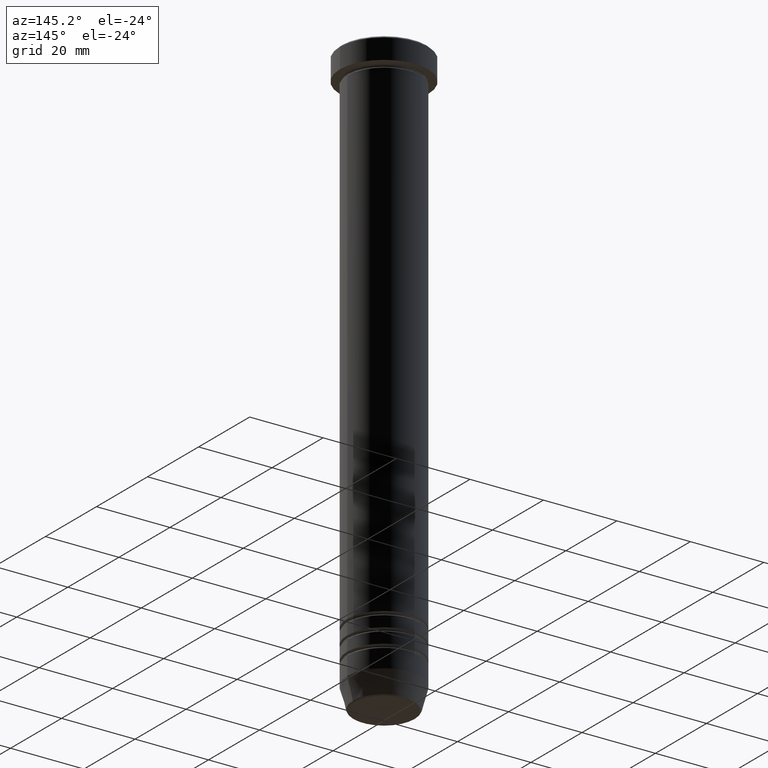
[diagram: clean part render]
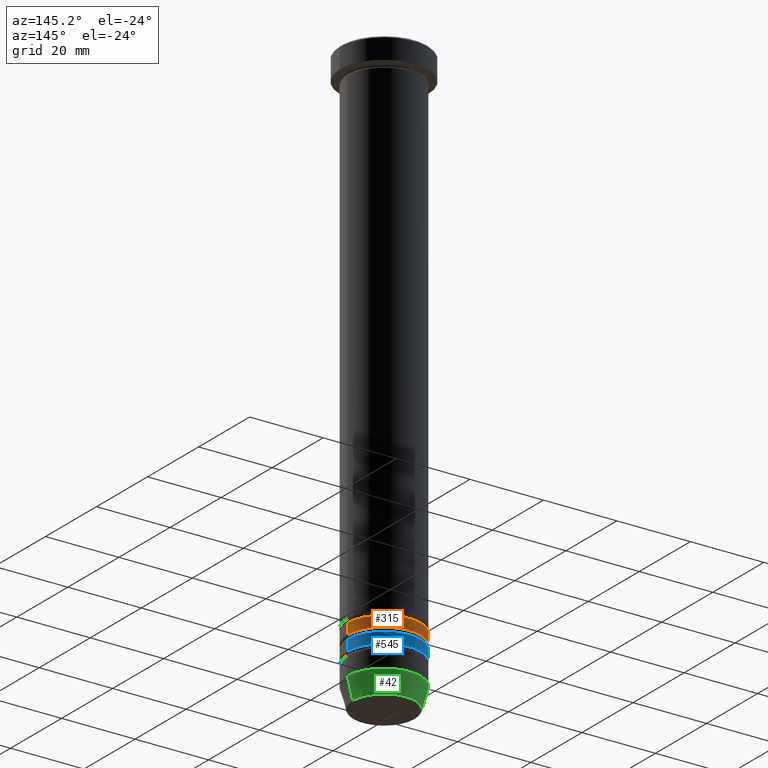
[diagram: same view with three faces highlighted in distinct colors, each labeled with its STEP entity id]
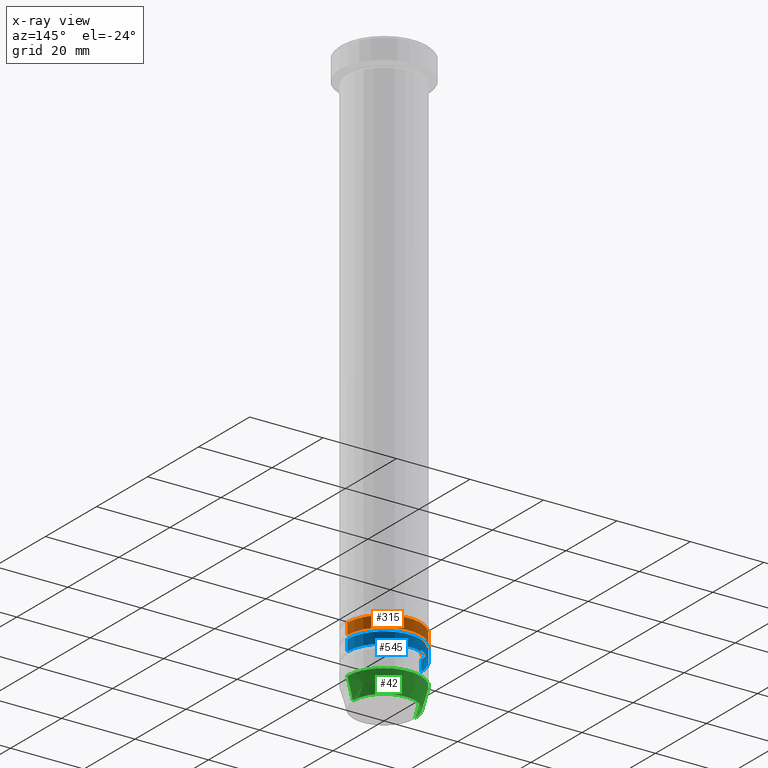
[diagram: x-ray of the same camera — body ghosted, the three highlighted faces saturated]
A machine part, auxiliary view with three faces highlighted in distinct colors.
The next image is the same camera in x-ray (body ghosted, the three faces saturated) — at least one of them is partly hidden behind the body in this view.
Their STEP definitions:

[orange] entity #315 — the highlighted cylindrical surface (partial cylindrical patch) has radius 10 mm, axis along (-0, -0, 1).
#14 = VERTEX_POINT ( 'NONE', #998 ) ;
#26 = EDGE_CURVE ( 'NONE', #702, #151, #523, .T. ) ;
#31 = DIRECTION ( 'NONE',  ( 1.000000000000000000, 0.000000000000000000, 0.000000000000000000 ) ) ;
#88 = AXIS2_PLACEMENT_3D ( 'NONE', #729, #962, #959 ) ;
#89 = AXIS2_PLACEMENT_3D ( 'NONE', #836, #443, #763 ) ;
#94 = CYLINDRICAL_SURFACE ( 'NONE', #88, 9.999999999999998224 ) ;
#122 = ORIENTED_EDGE ( 'NONE', *, *, #629, .F. ) ;
#131 = CARTESIAN_POINT ( 'NONE',  ( 10.00000000000000000, 0.000000000000000000, -141.0000000000000000 ) ) ;
#151 = VERTEX_POINT ( 'NONE', #131 ) ;
#169 = EDGE_CURVE ( 'NONE', #980, #14, #656, .T. ) ;
#276 = DIRECTION ( 'NONE',  ( -0.000000000000000000, -0.000000000000000000, 1.000000000000000000 ) ) ;
#315 = ADVANCED_FACE ( 'NONE', ( #502 ), #94, .T. ) ;
#332 = DIRECTION ( 'NONE',  ( -0.000000000000000000, -0.000000000000000000, 1.000000000000000000 ) ) ;
#357 = EDGE_CURVE ( 'NONE', #702, #980, #481, .T. ) ;
#402 = CARTESIAN_POINT ( 'NONE',  ( 9.999999999999998224, 0.000000000000000000, -144.0000000000000284 ) ) ;
#438 = CARTESIAN_POINT ( 'NONE',  ( 9.999999999999998224, 0.000000000000000000, 0.000000000000000000 ) ) ;
#443 = DIRECTION ( 'NONE',  ( -0.000000000000000000, -0.000000000000000000, 1.000000000000000000 ) ) ;
#481 = CIRCLE ( 'NONE', #889, 9.999999999999998224 ) ;
#502 = FACE_OUTER_BOUND ( 'NONE', #579, .T. ) ;
#515 = ORIENTED_EDGE ( 'NONE', *, *, #357, .T. ) ;
#517 = VECTOR ( 'NONE', #276, 1000.000000000000000 ) ;
#523 = LINE ( 'NONE', #438, #517 ) ;
#532 = DIRECTION ( 'NONE',  ( -0.000000000000000000, -0.000000000000000000, 1.000000000000000000 ) ) ;
#579 = EDGE_LOOP ( 'NONE', ( #515, #974, #122, #588 ) ) ;
#588 = ORIENTED_EDGE ( 'NONE', *, *, #26, .F. ) ;
#629 = EDGE_CURVE ( 'NONE', #151, #14, #795, .T. ) ;
#656 = LINE ( 'NONE', #735, #915 ) ;
#702 = VERTEX_POINT ( 'NONE', #402 ) ;
#729 = CARTESIAN_POINT ( 'NONE',  ( 0.000000000000000000, 0.000000000000000000, 0.000000000000000000 ) ) ;
#735 = CARTESIAN_POINT ( 'NONE',  ( -9.999999999999998224, 1.224646799147353059E-15, 0.000000000000000000 ) ) ;
#757 = CARTESIAN_POINT ( 'NONE',  ( -9.999999999999998224, 1.224646799147353059E-15, -144.0000000000000284 ) ) ;
#763 = DIRECTION ( 'NONE',  ( 1.000000000000000000, 0.000000000000000000, 0.000000000000000000 ) ) ;
#795 = CIRCLE ( 'NONE', #89, 10.00000000000000000 ) ;
#816 = CARTESIAN_POINT ( 'NONE',  ( 0.000000000000000000, 0.000000000000000000, -144.0000000000000284 ) ) ;
#836 = CARTESIAN_POINT ( 'NONE',  ( 0.000000000000000000, 0.000000000000000000, -141.0000000000000000 ) ) ;
#889 = AXIS2_PLACEMENT_3D ( 'NONE', #816, #532, #31 ) ;
#915 = VECTOR ( 'NONE', #332, 1000.000000000000000 ) ;
#959 = DIRECTION ( 'NONE',  ( 1.000000000000000000, 0.000000000000000000, 0.000000000000000000 ) ) ;
#962 = DIRECTION ( 'NONE',  ( -0.000000000000000000, -0.000000000000000000, 1.000000000000000000 ) ) ;
#974 = ORIENTED_EDGE ( 'NONE', *, *, #169, .T. ) ;
#980 = VERTEX_POINT ( 'NONE', #757 ) ;
#998 = CARTESIAN_POINT ( 'NONE',  ( -10.00000000000000000, 1.224646799147353256E-15, -141.0000000000000000 ) ) ;

[blue] entity #545 — the highlighted cylindrical surface (partial cylindrical patch) has radius 10 mm, axis along (-0, -0, 1).
#43 = CARTESIAN_POINT ( 'NONE',  ( -9.999999999999992895, 1.224646799147352665E-15, -148.0000000000000284 ) ) ;
#77 = DIRECTION ( 'NONE',  ( 1.000000000000000000, 0.000000000000000000, 0.000000000000000000 ) ) ;
#86 = ORIENTED_EDGE ( 'NONE', *, *, #1054, .F. ) ;
#97 = VERTEX_POINT ( 'NONE', #198 ) ;
#99 = VERTEX_POINT ( 'NONE', #118 ) ;
#118 = CARTESIAN_POINT ( 'NONE',  ( 9.999999999999992895, 0.000000000000000000, -148.0000000000000284 ) ) ;
#157 = DIRECTION ( 'NONE',  ( -0.000000000000000000, -0.000000000000000000, 1.000000000000000000 ) ) ;
#159 = CIRCLE ( 'NONE', #496, 9.999999999999992895 ) ;
#190 = DIRECTION ( 'NONE',  ( -0.000000000000000000, -0.000000000000000000, 1.000000000000000000 ) ) ;
#198 = CARTESIAN_POINT ( 'NONE',  ( 10.00000000000000000, 0.000000000000000000, -145.0000000000000284 ) ) ;
#208 = AXIS2_PLACEMENT_3D ( 'NONE', #913, #370, #212 ) ;
#212 = DIRECTION ( 'NONE',  ( 1.000000000000000000, 0.000000000000000000, 0.000000000000000000 ) ) ;
#269 = FACE_OUTER_BOUND ( 'NONE', #518, .T. ) ;
#281 = LINE ( 'NONE', #368, #887 ) ;
#284 = DIRECTION ( 'NONE',  ( -0.000000000000000000, -0.000000000000000000, 1.000000000000000000 ) ) ;
#297 = EDGE_CURVE ( 'NONE', #99, #595, #159, .T. ) ;
#358 = VECTOR ( 'NONE', #157, 1000.000000000000000 ) ;
#361 = VERTEX_POINT ( 'NONE', #1016 ) ;
#364 = EDGE_CURVE ( 'NONE', #595, #361, #281, .T. ) ;
#368 = CARTESIAN_POINT ( 'NONE',  ( -9.999999999999996447, 1.224646799147352862E-15, 0.000000000000000000 ) ) ;
#370 = DIRECTION ( 'NONE',  ( -0.000000000000000000, -0.000000000000000000, 1.000000000000000000 ) ) ;
#371 = CARTESIAN_POINT ( 'NONE',  ( 0.000000000000000000, 0.000000000000000000, 0.000000000000000000 ) ) ;
#439 = ORIENTED_EDGE ( 'NONE', *, *, #364, .T. ) ;
#451 = DIRECTION ( 'NONE',  ( 1.000000000000000000, 0.000000000000000000, 0.000000000000000000 ) ) ;
#496 = AXIS2_PLACEMENT_3D ( 'NONE', #1012, #844, #77 ) ;
#518 = EDGE_LOOP ( 'NONE', ( #963, #439, #86, #773 ) ) ;
#545 = ADVANCED_FACE ( 'NONE', ( #269 ), #932, .T. ) ;
#595 = VERTEX_POINT ( 'NONE', #43 ) ;
#673 = AXIS2_PLACEMENT_3D ( 'NONE', #371, #190, #451 ) ;
#713 = CARTESIAN_POINT ( 'NONE',  ( 9.999999999999996447, 0.000000000000000000, 0.000000000000000000 ) ) ;
#771 = EDGE_CURVE ( 'NONE', #99, #97, #875, .T. ) ;
#773 = ORIENTED_EDGE ( 'NONE', *, *, #771, .F. ) ;
#844 = DIRECTION ( 'NONE',  ( -0.000000000000000000, -0.000000000000000000, 1.000000000000000000 ) ) ;
#875 = LINE ( 'NONE', #713, #358 ) ;
#887 = VECTOR ( 'NONE', #284, 1000.000000000000000 ) ;
#892 = CIRCLE ( 'NONE', #208, 10.00000000000000000 ) ;
#913 = CARTESIAN_POINT ( 'NONE',  ( 0.000000000000000000, 0.000000000000000000, -145.0000000000000284 ) ) ;
#932 = CYLINDRICAL_SURFACE ( 'NONE', #673, 9.999999999999996447 ) ;
#963 = ORIENTED_EDGE ( 'NONE', *, *, #297, .T. ) ;
#1012 = CARTESIAN_POINT ( 'NONE',  ( 0.000000000000000000, 0.000000000000000000, -148.0000000000000284 ) ) ;
#1016 = CARTESIAN_POINT ( 'NONE',  ( -10.00000000000000178, 1.224646799147353454E-15, -145.0000000000000284 ) ) ;
#1054 = EDGE_CURVE ( 'NONE', #97, #361, #892, .T. ) ;

[green] entity #42 — the highlighted conical surface has half-angle 15 deg.
#18 = DIRECTION ( 'NONE',  ( -0.000000000000000000, -0.000000000000000000, 1.000000000000000000 ) ) ;
#42 = ADVANCED_FACE ( 'NONE', ( #922 ), #170, .T. ) ;
#58 = CARTESIAN_POINT ( 'NONE',  ( 10.00000000000000000, 0.000000000000000000, -154.0000000000000000 ) ) ;
#62 = DIRECTION ( 'NONE',  ( -1.000000000000000000, 0.000000000000000000, 0.000000000000000000 ) ) ;
#65 = CARTESIAN_POINT ( 'NONE',  ( 0.000000000000000000, 0.000000000000000000, -160.0000000000000284 ) ) ;
#67 = EDGE_CURVE ( 'NONE', #391, #1034, #584, .T. ) ;
#75 = DIRECTION ( 'NONE',  ( -0.2588190451025215166, 3.169619151431774802E-17, 0.9659258262890679791 ) ) ;
#124 = CIRCLE ( 'NONE', #396, 10.00000000000000000 ) ;
#127 = ORIENTED_EDGE ( 'NONE', *, *, #409, .F. ) ;
#170 = CONICAL_SURFACE ( 'NONE', #305, 8.392304845413249836, 0.2617993877991502960 ) ;
#199 = CARTESIAN_POINT ( 'NONE',  ( -8.491604264568300309, 1.132284198685155598E-15, -159.6294095225512990 ) ) ;
#218 = LINE ( 'NONE', #231, #846 ) ;
#231 = CARTESIAN_POINT ( 'NONE',  ( -8.392304845413249836, 1.027760926640415931E-15, -160.0000000000000284 ) ) ;
#244 = VERTEX_POINT ( 'NONE', #949 ) ;
#248 = ORIENTED_EDGE ( 'NONE', *, *, #657, .T. ) ;
#267 = EDGE_CURVE ( 'NONE', #408, #244, #124, .T. ) ;
#277 = ORIENTED_EDGE ( 'NONE', *, *, #67, .T. ) ;
#305 = AXIS2_PLACEMENT_3D ( 'NONE', #65, #482, #799 ) ;
#319 = CARTESIAN_POINT ( 'NONE',  ( 0.000000000000000000, 0.000000000000000000, -154.0000000000000000 ) ) ;
#386 = DIRECTION ( 'NONE',  ( 0.2588190451025215166, 0.000000000000000000, 0.9659258262890679791 ) ) ;
#389 = LINE ( 'NONE', #779, #553 ) ;
#391 = VERTEX_POINT ( 'NONE', #525 ) ;
#396 = AXIS2_PLACEMENT_3D ( 'NONE', #319, #18, #490 ) ;
#408 = VERTEX_POINT ( 'NONE', #58 ) ;
#409 = EDGE_CURVE ( 'NONE', #391, #408, #389, .T. ) ;
#482 = DIRECTION ( 'NONE',  ( -0.000000000000000000, -0.000000000000000000, 1.000000000000000000 ) ) ;
#490 = DIRECTION ( 'NONE',  ( 1.000000000000000000, 0.000000000000000000, 0.000000000000000000 ) ) ;
#525 = CARTESIAN_POINT ( 'NONE',  ( 8.491604264568300309, 0.000000000000000000, -159.6294095225512990 ) ) ;
#553 = VECTOR ( 'NONE', #386, 1000.000000000000114 ) ;
#584 = CIRCLE ( 'NONE', #736, 8.491604264568300309 ) ;
#657 = EDGE_CURVE ( 'NONE', #1034, #244, #218, .T. ) ;
#711 = DIRECTION ( 'NONE',  ( -0.000000000000000000, -0.000000000000000000, 1.000000000000000000 ) ) ;
#736 = AXIS2_PLACEMENT_3D ( 'NONE', #786, #711, #62 ) ;
#774 = ORIENTED_EDGE ( 'NONE', *, *, #267, .F. ) ;
#779 = CARTESIAN_POINT ( 'NONE',  ( 8.392304845413249836, 0.000000000000000000, -160.0000000000000284 ) ) ;
#786 = CARTESIAN_POINT ( 'NONE',  ( 0.000000000000000000, 0.000000000000000000, -159.6294095225512990 ) ) ;
#799 = DIRECTION ( 'NONE',  ( 1.000000000000000000, 0.000000000000000000, 0.000000000000000000 ) ) ;
#846 = VECTOR ( 'NONE', #75, 1000.000000000000114 ) ;
#922 = FACE_OUTER_BOUND ( 'NONE', #993, .T. ) ;
#949 = CARTESIAN_POINT ( 'NONE',  ( -10.00000000000000000, 1.224646799147353256E-15, -154.0000000000000000 ) ) ;
#993 = EDGE_LOOP ( 'NONE', ( #277, #248, #774, #127 ) ) ;
#1034 = VERTEX_POINT ( 'NONE', #199 ) ;